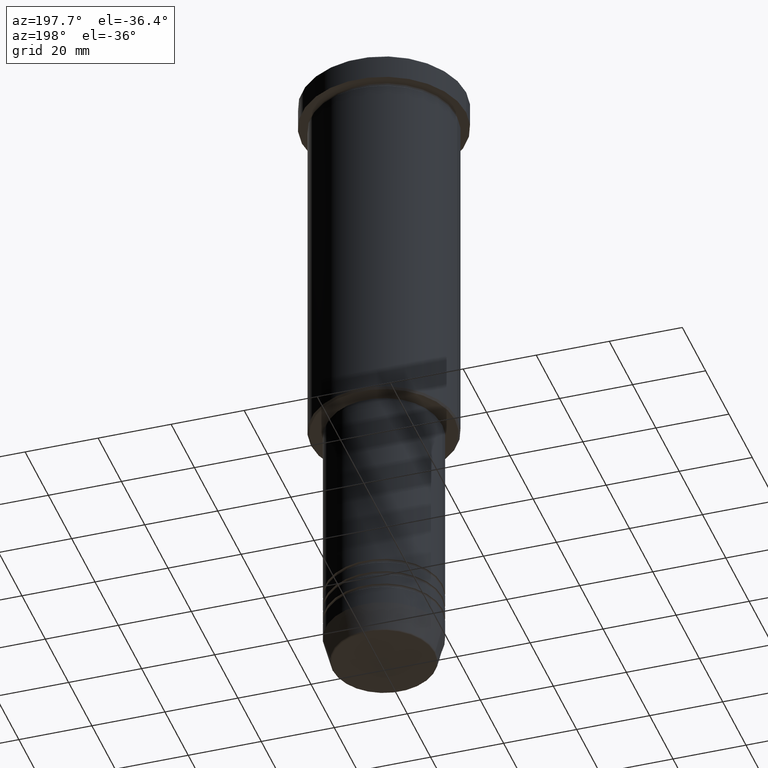
[diagram: clean part render]
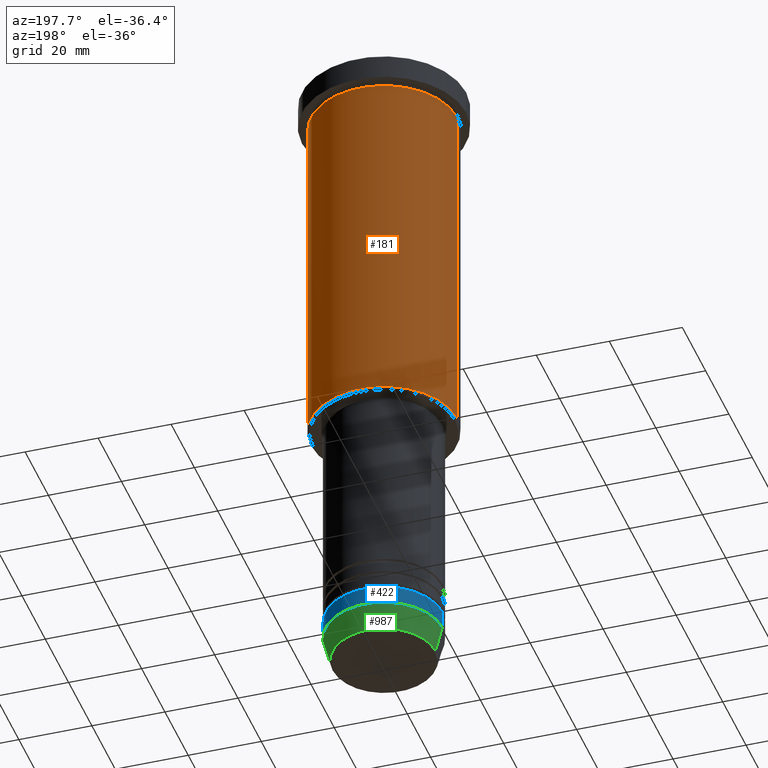
[diagram: same view with three faces highlighted in distinct colors, each labeled with its STEP entity id]
A machine part, auxiliary view with three faces highlighted in distinct colors.
Their STEP definitions:

[orange] entity #181 — the highlighted cylindrical surface (partial cylindrical patch) has radius 20 mm, axis along (-0, -0, 1).
#24 = LINE ( 'NONE', #934, #529 ) ;
#66 = ORIENTED_EDGE ( 'NONE', *, *, #920, .T. ) ;
#106 = CARTESIAN_POINT ( 'NONE',  ( -20.00000000000000000, 2.449293598294706513E-15, -7.999999999999994671 ) ) ;
#158 = CARTESIAN_POINT ( 'NONE',  ( 0.000000000000000000, 0.000000000000000000, -105.5000000000000142 ) ) ;
#165 = CARTESIAN_POINT ( 'NONE',  ( 20.00000000000000355, 0.000000000000000000, 0.000000000000000000 ) ) ;
#181 = ADVANCED_FACE ( 'NONE', ( #981 ), #1180, .T. ) ;
#216 = EDGE_CURVE ( 'NONE', #503, #769, #24, .T. ) ;
#233 = DIRECTION ( 'NONE',  ( -0.000000000000000000, -0.000000000000000000, 1.000000000000000000 ) ) ;
#234 = ORIENTED_EDGE ( 'NONE', *, *, #707, .F. ) ;
#238 = VECTOR ( 'NONE', #807, 1000.000000000000000 ) ;
#252 = AXIS2_PLACEMENT_3D ( 'NONE', #764, #590, #305 ) ;
#268 = AXIS2_PLACEMENT_3D ( 'NONE', #338, #904, #716 ) ;
#305 = DIRECTION ( 'NONE',  ( 1.000000000000000000, 0.000000000000000000, 0.000000000000000000 ) ) ;
#338 = CARTESIAN_POINT ( 'NONE',  ( 0.000000000000000000, 0.000000000000000000, 0.000000000000000000 ) ) ;
#365 = CARTESIAN_POINT ( 'NONE',  ( -20.00000000000000355, 2.449293598294706907E-15, -105.5000000000000142 ) ) ;
#394 = VERTEX_POINT ( 'NONE', #693 ) ;
#432 = LINE ( 'NONE', #165, #238 ) ;
#436 = EDGE_CURVE ( 'NONE', #976, #769, #945, .T. ) ;
#492 = DIRECTION ( 'NONE',  ( -0.000000000000000000, -0.000000000000000000, 1.000000000000000000 ) ) ;
#503 = VERTEX_POINT ( 'NONE', #365 ) ;
#529 = VECTOR ( 'NONE', #492, 1000.000000000000000 ) ;
#550 = ORIENTED_EDGE ( 'NONE', *, *, #216, .T. ) ;
#590 = DIRECTION ( 'NONE',  ( -0.000000000000000000, -0.000000000000000000, 1.000000000000000000 ) ) ;
#612 = DIRECTION ( 'NONE',  ( -1.000000000000000000, 0.000000000000000000, 0.000000000000000000 ) ) ;
#693 = CARTESIAN_POINT ( 'NONE',  ( 20.00000000000000355, 0.000000000000000000, -105.5000000000000142 ) ) ;
#707 = EDGE_CURVE ( 'NONE', #394, #976, #432, .T. ) ;
#716 = DIRECTION ( 'NONE',  ( 1.000000000000000000, 0.000000000000000000, 0.000000000000000000 ) ) ;
#746 = CARTESIAN_POINT ( 'NONE',  ( 20.00000000000000000, 0.000000000000000000, -7.999999999999994671 ) ) ;
#764 = CARTESIAN_POINT ( 'NONE',  ( 0.000000000000000000, 0.000000000000000000, -7.999999999999994671 ) ) ;
#769 = VERTEX_POINT ( 'NONE', #106 ) ;
#795 = AXIS2_PLACEMENT_3D ( 'NONE', #158, #233, #612 ) ;
#807 = DIRECTION ( 'NONE',  ( -0.000000000000000000, -0.000000000000000000, 1.000000000000000000 ) ) ;
#895 = EDGE_LOOP ( 'NONE', ( #66, #550, #1114, #234 ) ) ;
#904 = DIRECTION ( 'NONE',  ( -0.000000000000000000, -0.000000000000000000, 1.000000000000000000 ) ) ;
#920 = EDGE_CURVE ( 'NONE', #394, #503, #1142, .T. ) ;
#934 = CARTESIAN_POINT ( 'NONE',  ( -20.00000000000000355, 2.449293598294706907E-15, 0.000000000000000000 ) ) ;
#945 = CIRCLE ( 'NONE', #252, 20.00000000000000000 ) ;
#976 = VERTEX_POINT ( 'NONE', #746 ) ;
#981 = FACE_OUTER_BOUND ( 'NONE', #895, .T. ) ;
#1114 = ORIENTED_EDGE ( 'NONE', *, *, #436, .F. ) ;
#1142 = CIRCLE ( 'NONE', #795, 20.00000000000000355 ) ;
#1180 = CYLINDRICAL_SURFACE ( 'NONE', #268, 20.00000000000000355 ) ;

[blue] entity #422 — the highlighted cylindrical surface (partial cylindrical patch) has radius 16 mm, axis along (-0, -0, 1).
#71 = CARTESIAN_POINT ( 'NONE',  ( 16.00000000000000000, 0.000000000000000000, -172.5000000000000284 ) ) ;
#82 = EDGE_CURVE ( 'NONE', #972, #480, #882, .T. ) ;
#95 = AXIS2_PLACEMENT_3D ( 'NONE', #1141, #329, #1067 ) ;
#96 = AXIS2_PLACEMENT_3D ( 'NONE', #295, #939, #1043 ) ;
#105 = LINE ( 'NONE', #193, #907 ) ;
#133 = CIRCLE ( 'NONE', #96, 16.00000000000000000 ) ;
#142 = CARTESIAN_POINT ( 'NONE',  ( -16.00000000000000000, 1.959434878635765131E-15, 0.000000000000000000 ) ) ;
#193 = CARTESIAN_POINT ( 'NONE',  ( 16.00000000000000000, 0.000000000000000000, 0.000000000000000000 ) ) ;
#295 = CARTESIAN_POINT ( 'NONE',  ( 0.000000000000000000, 0.000000000000000000, -167.5000000000000000 ) ) ;
#329 = DIRECTION ( 'NONE',  ( -0.000000000000000000, -0.000000000000000000, 1.000000000000000000 ) ) ;
#416 = FACE_OUTER_BOUND ( 'NONE', #862, .T. ) ;
#422 = ADVANCED_FACE ( 'NONE', ( #416 ), #788, .T. ) ;
#465 = CARTESIAN_POINT ( 'NONE',  ( -16.00000000000000000, 1.959434878635765131E-15, -172.5000000000000284 ) ) ;
#480 = VERTEX_POINT ( 'NONE', #519 ) ;
#493 = CIRCLE ( 'NONE', #95, 16.00000000000000000 ) ;
#516 = ORIENTED_EDGE ( 'NONE', *, *, #82, .T. ) ;
#519 = CARTESIAN_POINT ( 'NONE',  ( -16.00000000000000000, 1.959434878635765131E-15, -167.5000000000000000 ) ) ;
#523 = DIRECTION ( 'NONE',  ( -0.000000000000000000, -0.000000000000000000, 1.000000000000000000 ) ) ;
#538 = ORIENTED_EDGE ( 'NONE', *, *, #1083, .F. ) ;
#539 = CARTESIAN_POINT ( 'NONE',  ( 0.000000000000000000, 0.000000000000000000, 0.000000000000000000 ) ) ;
#567 = VECTOR ( 'NONE', #523, 1000.000000000000000 ) ;
#572 = ORIENTED_EDGE ( 'NONE', *, *, #885, .T. ) ;
#702 = ORIENTED_EDGE ( 'NONE', *, *, #1136, .F. ) ;
#740 = DIRECTION ( 'NONE',  ( -0.000000000000000000, -0.000000000000000000, 1.000000000000000000 ) ) ;
#788 = CYLINDRICAL_SURFACE ( 'NONE', #797, 16.00000000000000000 ) ;
#797 = AXIS2_PLACEMENT_3D ( 'NONE', #539, #902, #1109 ) ;
#849 = VERTEX_POINT ( 'NONE', #71 ) ;
#862 = EDGE_LOOP ( 'NONE', ( #572, #516, #702, #538 ) ) ;
#882 = LINE ( 'NONE', #142, #567 ) ;
#885 = EDGE_CURVE ( 'NONE', #849, #972, #493, .T. ) ;
#902 = DIRECTION ( 'NONE',  ( -0.000000000000000000, -0.000000000000000000, 1.000000000000000000 ) ) ;
#907 = VECTOR ( 'NONE', #740, 1000.000000000000000 ) ;
#939 = DIRECTION ( 'NONE',  ( -0.000000000000000000, -0.000000000000000000, 1.000000000000000000 ) ) ;
#972 = VERTEX_POINT ( 'NONE', #465 ) ;
#1016 = VERTEX_POINT ( 'NONE', #1025 ) ;
#1025 = CARTESIAN_POINT ( 'NONE',  ( 16.00000000000000000, 0.000000000000000000, -167.5000000000000000 ) ) ;
#1043 = DIRECTION ( 'NONE',  ( 1.000000000000000000, 0.000000000000000000, 0.000000000000000000 ) ) ;
#1067 = DIRECTION ( 'NONE',  ( 1.000000000000000000, 0.000000000000000000, 0.000000000000000000 ) ) ;
#1083 = EDGE_CURVE ( 'NONE', #849, #1016, #105, .T. ) ;
#1109 = DIRECTION ( 'NONE',  ( 1.000000000000000000, 0.000000000000000000, 0.000000000000000000 ) ) ;
#1136 = EDGE_CURVE ( 'NONE', #1016, #480, #133, .T. ) ;
#1141 = CARTESIAN_POINT ( 'NONE',  ( 0.000000000000000000, 0.000000000000000000, -172.5000000000000284 ) ) ;

[green] entity #987 — the highlighted conical surface has half-angle 15 deg.
#29 = ORIENTED_EDGE ( 'NONE', *, *, #290, .T. ) ;
#71 = CARTESIAN_POINT ( 'NONE',  ( 16.00000000000000000, 0.000000000000000000, -172.5000000000000284 ) ) ;
#81 = FACE_OUTER_BOUND ( 'NONE', #352, .T. ) ;
#95 = AXIS2_PLACEMENT_3D ( 'NONE', #1141, #329, #1067 ) ;
#277 = VERTEX_POINT ( 'NONE', #574 ) ;
#290 = EDGE_CURVE ( 'NONE', #956, #277, #446, .T. ) ;
#323 = LINE ( 'NONE', #420, #732 ) ;
#329 = DIRECTION ( 'NONE',  ( -0.000000000000000000, -0.000000000000000000, 1.000000000000000000 ) ) ;
#333 = EDGE_CURVE ( 'NONE', #277, #972, #647, .T. ) ;
#351 = DIRECTION ( 'NONE',  ( 1.000000000000000000, 0.000000000000000000, 0.000000000000000000 ) ) ;
#352 = EDGE_LOOP ( 'NONE', ( #29, #829, #868, #695 ) ) ;
#368 = VECTOR ( 'NONE', #916, 1000.000000000000000 ) ;
#420 = CARTESIAN_POINT ( 'NONE',  ( 16.00000000000000000, 0.000000000000000000, -172.5000000000000284 ) ) ;
#433 = CARTESIAN_POINT ( 'NONE',  ( 14.08968047592163941, 0.000000000000000000, -179.6294095225512422 ) ) ;
#446 = CIRCLE ( 'NONE', #1020, 14.08968047592163941 ) ;
#465 = CARTESIAN_POINT ( 'NONE',  ( -16.00000000000000000, 1.959434878635765131E-15, -172.5000000000000284 ) ) ;
#493 = CIRCLE ( 'NONE', #95, 16.00000000000000000 ) ;
#574 = CARTESIAN_POINT ( 'NONE',  ( -14.08968047592163941, 1.842461544110202058E-15, -179.6294095225512422 ) ) ;
#647 = LINE ( 'NONE', #1007, #368 ) ;
#695 = ORIENTED_EDGE ( 'NONE', *, *, #850, .F. ) ;
#732 = VECTOR ( 'NONE', #819, 1000.000000000000000 ) ;
#819 = DIRECTION ( 'NONE',  ( 0.2588190451025213501, 0.000000000000000000, 0.9659258262890680902 ) ) ;
#829 = ORIENTED_EDGE ( 'NONE', *, *, #333, .T. ) ;
#834 = DIRECTION ( 'NONE',  ( -0.000000000000000000, -0.000000000000000000, 1.000000000000000000 ) ) ;
#846 = CARTESIAN_POINT ( 'NONE',  ( 0.000000000000000000, 0.000000000000000000, -179.6294095225512422 ) ) ;
#849 = VERTEX_POINT ( 'NONE', #71 ) ;
#850 = EDGE_CURVE ( 'NONE', #956, #849, #323, .T. ) ;
#868 = ORIENTED_EDGE ( 'NONE', *, *, #885, .F. ) ;
#885 = EDGE_CURVE ( 'NONE', #849, #972, #493, .T. ) ;
#916 = DIRECTION ( 'NONE',  ( -0.2588190451025213501, 3.169619151431772337E-17, 0.9659258262890680902 ) ) ;
#956 = VERTEX_POINT ( 'NONE', #433 ) ;
#957 = AXIS2_PLACEMENT_3D ( 'NONE', #1106, #834, #351 ) ;
#972 = VERTEX_POINT ( 'NONE', #465 ) ;
#987 = ADVANCED_FACE ( 'NONE', ( #81 ), #1165, .T. ) ;
#1007 = CARTESIAN_POINT ( 'NONE',  ( -16.00000000000000000, 1.959434878635765131E-15, -172.5000000000000284 ) ) ;
#1020 = AXIS2_PLACEMENT_3D ( 'NONE', #846, #1112, #1028 ) ;
#1028 = DIRECTION ( 'NONE',  ( 1.000000000000000000, 0.000000000000000000, 0.000000000000000000 ) ) ;
#1067 = DIRECTION ( 'NONE',  ( 1.000000000000000000, 0.000000000000000000, 0.000000000000000000 ) ) ;
#1106 = CARTESIAN_POINT ( 'NONE',  ( 0.000000000000000000, 0.000000000000000000, -172.5000000000000284 ) ) ;
#1112 = DIRECTION ( 'NONE',  ( -0.000000000000000000, -0.000000000000000000, 1.000000000000000000 ) ) ;
#1141 = CARTESIAN_POINT ( 'NONE',  ( 0.000000000000000000, 0.000000000000000000, -172.5000000000000284 ) ) ;
#1165 = CONICAL_SURFACE ( 'NONE', #957, 16.00000000000000000, 0.2617993877991500740 ) ;